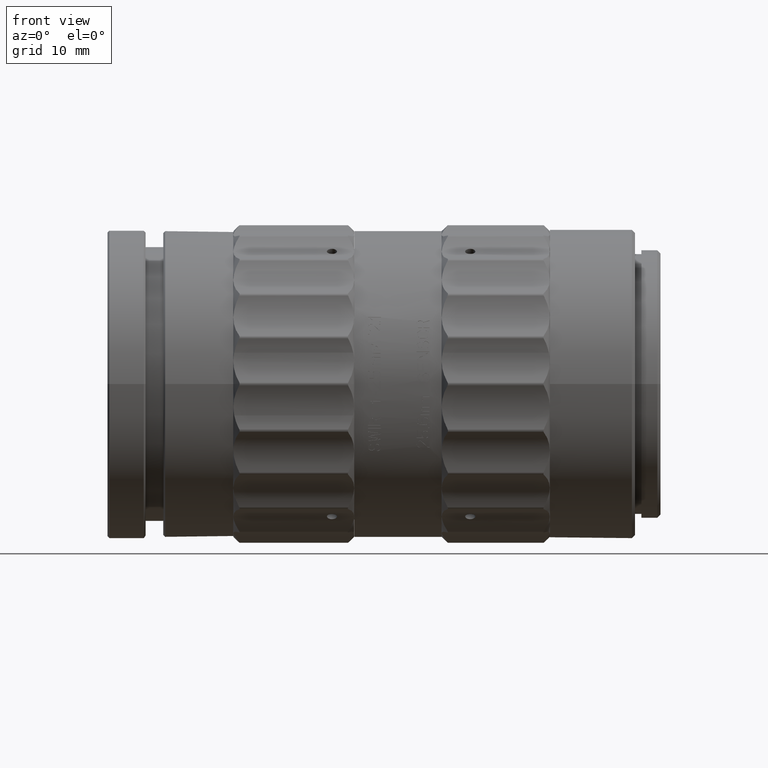
[diagram: clean part render]
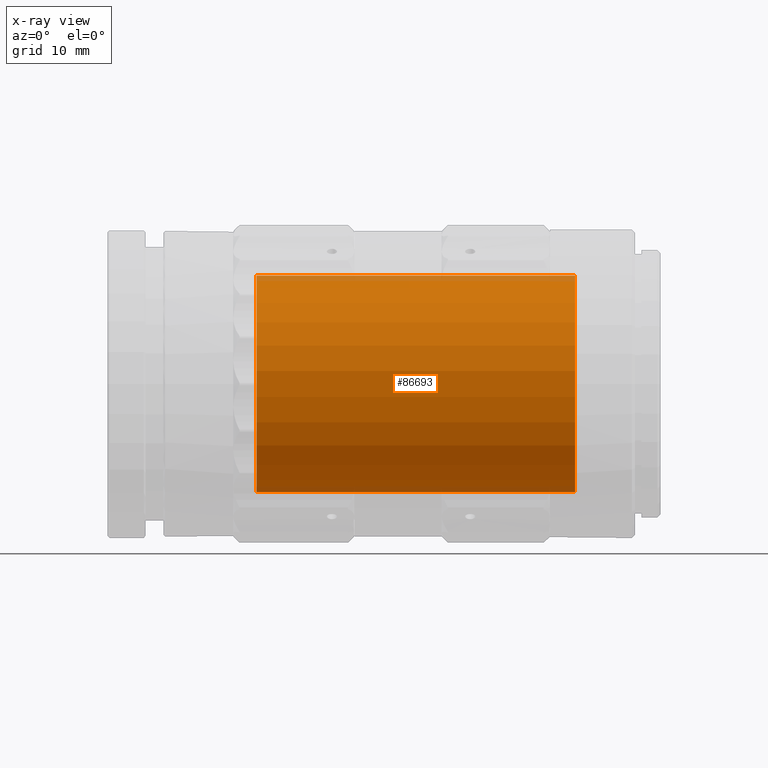
[diagram: x-ray — body ghosted, one internal face saturated and labeled with its STEP entity id]
A machine part, front view, then the same camera in x-ray: the body is ghosted and one INTERNAL B-rep face — a face not visible from any outside direction — is saturated and labeled: STEP entity #86693.
In plain terms, the highlighted cylindrical surface (partial cylindrical patch) has radius 17 mm, axis along (-1, 0, 0).
Its self-contained STEP definition (entity closure, byte-faithful):
#554 = DIRECTION ( 'NONE',  ( 0.000000000000000000, 1.000000000000000000, -6.123233995736769734E-17 ) ) ;
#1012 = CARTESIAN_POINT ( 'NONE',  ( 69.17000000000000171, 0.000000000000000000, 0.000000000000000000 ) ) ;
#2334 = DIRECTION ( 'NONE',  ( 1.000000000000000000, 0.000000000000000000, 0.000000000000000000 ) ) ;
#3818 = VERTEX_POINT ( 'NONE', #22349 ) ;
#9371 = DIRECTION ( 'NONE',  ( 0.000000000000000000, 0.000000000000000000, 1.000000000000000000 ) ) ;
#10460 = AXIS2_PLACEMENT_3D ( 'NONE', #22617, #49614, #9371 ) ;
#10720 = ORIENTED_EDGE ( 'NONE', *, *, #44708, .T. ) ;
#16351 = VECTOR ( 'NONE', #38504, 1000.000000000000000 ) ;
#17675 = CIRCLE ( 'NONE', #84027, 17.00000000000000000 ) ;
#22349 = CARTESIAN_POINT ( 'NONE',  ( 69.17000000000000171, 0.000000000000000000, 17.00000000000000000 ) ) ;
#22617 = CARTESIAN_POINT ( 'NONE',  ( 69.17000000000000171, 0.000000000000000000, 0.000000000000000000 ) ) ;
#23498 = FACE_OUTER_BOUND ( 'NONE', #80090, .T. ) ;
#31579 = DIRECTION ( 'NONE',  ( -1.000000000000000000, 0.000000000000000000, 0.000000000000000000 ) ) ;
#31681 = EDGE_CURVE ( 'NONE', #3818, #36831, #70999, .T. ) ;
#31948 = EDGE_CURVE ( 'NONE', #3818, #74261, #85165, .T. ) ;
#34268 = CARTESIAN_POINT ( 'NONE',  ( 19.16999999999999815, 0.000000000000000000, 0.000000000000000000 ) ) ;
#36831 = VERTEX_POINT ( 'NONE', #87587 ) ;
#38504 = DIRECTION ( 'NONE',  ( -1.000000000000000000, 0.000000000000000000, 0.000000000000000000 ) ) ;
#43264 = VERTEX_POINT ( 'NONE', #44863 ) ;
#44708 = EDGE_CURVE ( 'NONE', #36831, #43264, #17675, .T. ) ;
#44863 = CARTESIAN_POINT ( 'NONE',  ( 19.16999999999999815, 2.081899558550499885E-15, -17.00000000000000000 ) ) ;
#49614 = DIRECTION ( 'NONE',  ( -1.000000000000000000, 0.000000000000000000, 0.000000000000000000 ) ) ;
#49696 = ORIENTED_EDGE ( 'NONE', *, *, #31681, .T. ) ;
#52886 = DIRECTION ( 'NONE',  ( 0.000000000000000000, 1.000000000000000000, -6.123233995736769734E-17 ) ) ;
#56238 = CYLINDRICAL_SURFACE ( 'NONE', #10460, 17.00000000000000000 ) ;
#56900 = VECTOR ( 'NONE', #31579, 1000.000000000000000 ) ;
#61131 = EDGE_CURVE ( 'NONE', #74261, #43264, #64221, .T. ) ;
#61265 = DIRECTION ( 'NONE',  ( 1.000000000000000000, 0.000000000000000000, 0.000000000000000000 ) ) ;
#62573 = CARTESIAN_POINT ( 'NONE',  ( 69.17000000000000171, 2.081899558550499885E-15, -17.00000000000000000 ) ) ;
#63685 = ORIENTED_EDGE ( 'NONE', *, *, #31948, .F. ) ;
#64221 = LINE ( 'NONE', #62573, #16351 ) ;
#64821 = CARTESIAN_POINT ( 'NONE',  ( 69.17000000000000171, 0.000000000000000000, 17.00000000000000000 ) ) ;
#66810 = AXIS2_PLACEMENT_3D ( 'NONE', #1012, #2334, #554 ) ;
#67387 = ORIENTED_EDGE ( 'NONE', *, *, #61131, .F. ) ;
#70999 = LINE ( 'NONE', #64821, #56900 ) ;
#74261 = VERTEX_POINT ( 'NONE', #85994 ) ;
#80090 = EDGE_LOOP ( 'NONE', ( #67387, #63685, #49696, #10720 ) ) ;
#84027 = AXIS2_PLACEMENT_3D ( 'NONE', #34268, #61265, #52886 ) ;
#85165 = CIRCLE ( 'NONE', #66810, 17.00000000000000000 ) ;
#85994 = CARTESIAN_POINT ( 'NONE',  ( 69.17000000000000171, 2.081899558550499885E-15, -17.00000000000000000 ) ) ;
#86693 = ADVANCED_FACE ( 'NONE', ( #23498 ), #56238, .T. ) ;
#87587 = CARTESIAN_POINT ( 'NONE',  ( 19.16999999999999815, 0.000000000000000000, 17.00000000000000000 ) ) ;